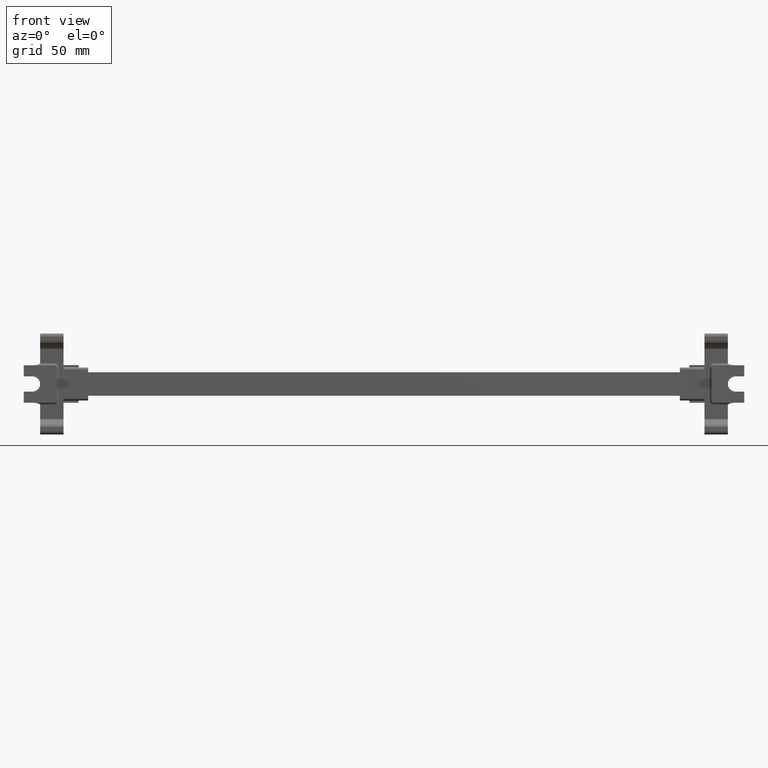
[diagram: clean part render]
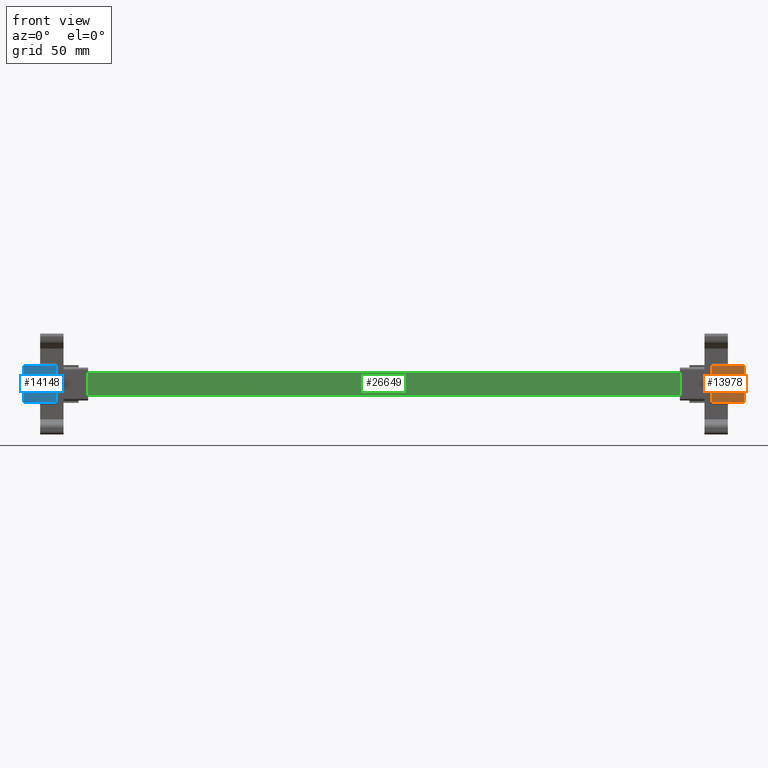
[diagram: same view with three faces highlighted in distinct colors, each labeled with its STEP entity id]
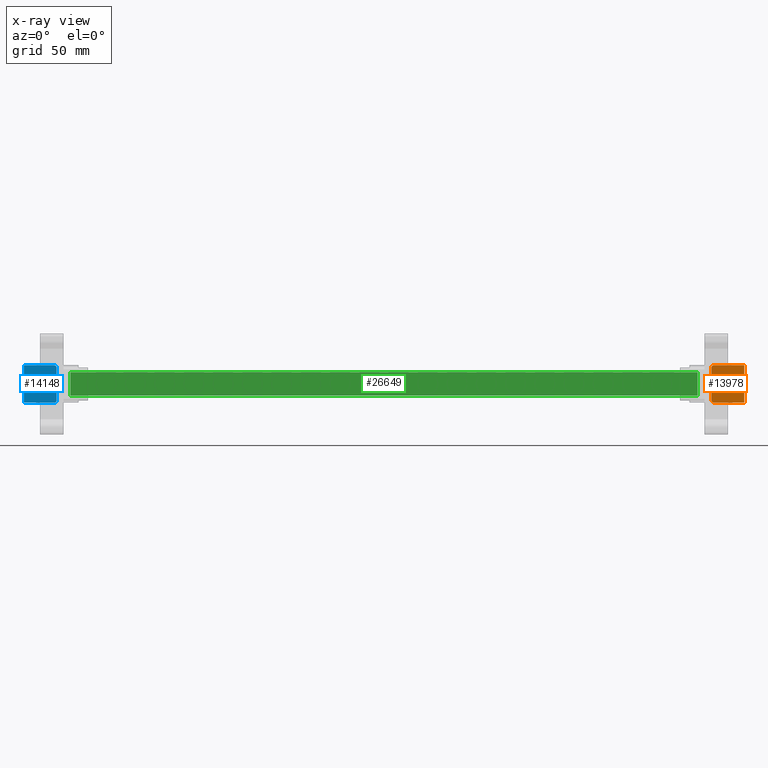
[diagram: x-ray of the same camera — body ghosted, the three highlighted faces saturated]
A machine part, front view with three faces highlighted in distinct colors.
The next image is the same camera in x-ray (body ghosted, the three faces saturated) — at least one of them is partly hidden behind the body in this view.
Their STEP definitions:

[orange] entity #13978 — the highlighted planar face has unit normal (-0, -1, -0).
#1076 = DIRECTION ( 'NONE',  ( 1.000000000000000000, -8.540177112501197500E-015, 6.405132834375897700E-015 ) ) ;
#1079 = DIRECTION ( 'NONE',  ( -7.897574987183420400E-015, -1.000000000000000000, -2.740021935547334900E-029 ) ) ;
#1091 = CARTESIAN_POINT ( 'NONE',  ( 235.2973023041757900, 37.74082521647592600, 38.07764998369230400 ) ) ;
#2819 = AXIS2_PLACEMENT_3D ( 'NONE', #1091, #1079, #1076 ) ;
#2843 = CIRCLE ( 'NONE', #2819, 3.250000000000002700 ) ;
#6812 = EDGE_CURVE ( 'NONE', #9332, #9300, #2843, .T. ) ;
#9300 = VERTEX_POINT ( 'NONE', #18693 ) ;
#9332 = VERTEX_POINT ( 'NONE', #18640 ) ;
#12582 = LINE ( 'NONE', #12598, #21696 ) ;
#12587 = LINE ( 'NONE', #12664, #21679 ) ;
#12598 = CARTESIAN_POINT ( 'NONE',  ( 205.5548808714676200, 37.74082521647613900, 30.07865108636539700 ) ) ;
#12624 = DIRECTION ( 'NONE',  ( 1.000000000000000000, -7.897574987183420400E-015, 3.511194208363125300E-015 ) ) ;
#12664 = CARTESIAN_POINT ( 'NONE',  ( 205.5548808714676200, 37.74082521647613900, 46.07664888101894700 ) ) ;
#12691 = DIRECTION ( 'NONE',  ( 1.000000000000000000, -6.938893903907222100E-015, 0.0000000000000000000 ) ) ;
#12723 = CARTESIAN_POINT ( 'NONE',  ( 226.0473023041757300, 37.74082521647602600, 45.07664888101899000 ) ) ;
#12727 = DIRECTION ( 'NONE',  ( -7.897574987183420400E-015, -1.000000000000000000, -2.740021935547334900E-029 ) ) ;
#12735 = DIRECTION ( 'NONE',  ( 7.897574987183420400E-015, 1.000000000000000000, -2.709602578543629900E-029 ) ) ;
#12755 = DIRECTION ( 'NONE',  ( 1.000000000000000000, -7.897574987183420400E-015, 3.511194208363125300E-015 ) ) ;
#12761 = CARTESIAN_POINT ( 'NONE',  ( 226.0473023041758200, 37.74082521647602600, 31.07865108636548600 ) ) ;
#12776 = DIRECTION ( 'NONE',  ( 1.000000000000000000, -6.938893903907222100E-015, 6.938893903907222100E-015 ) ) ;
#12786 = CARTESIAN_POINT ( 'NONE',  ( 239.0473023041757000, 37.74082521647591900, 46.07664888101908200 ) ) ;
#12789 = LINE ( 'NONE', #12848, #21589 ) ;
#12796 = DIRECTION ( 'NONE',  ( 3.552941225665730200E-015, -6.594003992771352600E-031, -1.000000000000000000 ) ) ;
#12804 = CARTESIAN_POINT ( 'NONE',  ( 235.2973023041757900, 37.74082521647592600, 38.07764998369230400 ) ) ;
#12805 = DIRECTION ( 'NONE',  ( -7.897574987183420400E-015, -1.000000000000000000, -2.740021935547334900E-029 ) ) ;
#12838 = DIRECTION ( 'NONE',  ( 1.000000000000000000, -8.540177112501197500E-015, 6.405132834375897700E-015 ) ) ;
#12848 = CARTESIAN_POINT ( 'NONE',  ( 205.5548808714676500, 37.74082521647613900, 41.32764998369209800 ) ) ;
#12852 = DIRECTION ( 'NONE',  ( -1.000000000000000000, 7.897574987183420400E-015, -7.022388416726250500E-015 ) ) ;
#12871 = LINE ( 'NONE', #12786, #21655 ) ;
#12971 = LINE ( 'NONE', #12977, #21683 ) ;
#12977 = CARTESIAN_POINT ( 'NONE',  ( 205.5548808714676500, 37.74082521647613900, 34.82764998369224700 ) ) ;
#12981 = DIRECTION ( 'NONE',  ( -1.000000000000000000, 7.897574987183420400E-015, 0.0000000000000000000 ) ) ;
#12983 = CARTESIAN_POINT ( 'NONE',  ( 225.0473023041756400, 37.74082521647588400, 71.07764998369228200 ) ) ;
#12985 = LINE ( 'NONE', #12983, #21785 ) ;
#13040 = LINE ( 'NONE', #13053, #21623 ) ;
#13047 = DIRECTION ( 'NONE',  ( 3.511194208363125300E-015, -2.757782277009340000E-029, -1.000000000000000000 ) ) ;
#13053 = CARTESIAN_POINT ( 'NONE',  ( 239.0473023041758200, 37.74082521647591900, 30.07865108636553600 ) ) ;
#13058 = DIRECTION ( 'NONE',  ( -3.469447191060520300E-015, 5.449624514090966400E-029, 1.000000000000000000 ) ) ;
#13978 = ADVANCED_FACE ( 'NONE', ( #23113 ), #23101, .T. ) ;
#14381 = EDGE_CURVE ( 'NONE', #20359, #20355, #12587, .T. ) ;
#14384 = EDGE_CURVE ( 'NONE', #20346, #20396, #12582, .T. ) ;
#14389 = EDGE_CURVE ( 'NONE', #20359, #20413, #21709, .T. ) ;
#14391 = EDGE_CURVE ( 'NONE', #20346, #20363, #21602, .T. ) ;
#14406 = EDGE_CURVE ( 'NONE', #9300, #20402, #21668, .T. ) ;
#14408 = EDGE_CURVE ( 'NONE', #20355, #20388, #12871, .T. ) ;
#14411 = EDGE_CURVE ( 'NONE', #20388, #9332, #12789, .T. ) ;
#14424 = EDGE_CURVE ( 'NONE', #20395, #20402, #12971, .T. ) ;
#14431 = EDGE_CURVE ( 'NONE', #20396, #20395, #13040, .T. ) ;
#14437 = EDGE_CURVE ( 'NONE', #20413, #20363, #12985, .T. ) ;
#18640 = CARTESIAN_POINT ( 'NONE',  ( 235.2973023041757300, 37.74082521647592600, 41.32764998369230400 ) ) ;
#18693 = CARTESIAN_POINT ( 'NONE',  ( 232.0473023041757900, 37.74082521647595500, 38.07764998369228200 ) ) ;
#19031 = ORIENTED_EDGE ( 'NONE', *, *, #14406, .F. ) ;
#19051 = ORIENTED_EDGE ( 'NONE', *, *, #14384, .T. ) ;
#19053 = ORIENTED_EDGE ( 'NONE', *, *, #14431, .T. ) ;
#19055 = ORIENTED_EDGE ( 'NONE', *, *, #14391, .F. ) ;
#19062 = ORIENTED_EDGE ( 'NONE', *, *, #14437, .T. ) ;
#19064 = ORIENTED_EDGE ( 'NONE', *, *, #14408, .F. ) ;
#19087 = ORIENTED_EDGE ( 'NONE', *, *, #14411, .F. ) ;
#20346 = VERTEX_POINT ( 'NONE', #28900 ) ;
#20355 = VERTEX_POINT ( 'NONE', #28903 ) ;
#20359 = VERTEX_POINT ( 'NONE', #28907 ) ;
#20363 = VERTEX_POINT ( 'NONE', #28898 ) ;
#20388 = VERTEX_POINT ( 'NONE', #28960 ) ;
#20395 = VERTEX_POINT ( 'NONE', #28996 ) ;
#20396 = VERTEX_POINT ( 'NONE', #28966 ) ;
#20402 = VERTEX_POINT ( 'NONE', #29006 ) ;
#20413 = VERTEX_POINT ( 'NONE', #28990 ) ;
#20877 = EDGE_LOOP ( 'NONE', ( #27295, #27285, #19062, #19055, #19051, #19053, #27288, #19031, #27289, #19087, #19064 ) ) ;
#21589 = VECTOR ( 'NONE', #12852, 1000.000000000000000 ) ;
#21602 = CIRCLE ( 'NONE', #21604, 1.000000000000000900 ) ;
#21604 = AXIS2_PLACEMENT_3D ( 'NONE', #12761, #12735, #12691 ) ;
#21609 = AXIS2_PLACEMENT_3D ( 'NONE', #12804, #12805, #12838 ) ;
#21623 = VECTOR ( 'NONE', #13058, 1000.000000000000000 ) ;
#21655 = VECTOR ( 'NONE', #12796, 1000.000000000000000 ) ;
#21668 = CIRCLE ( 'NONE', #21609, 3.250000000000002700 ) ;
#21679 = VECTOR ( 'NONE', #12624, 1000.000000000000000 ) ;
#21683 = VECTOR ( 'NONE', #12981, 1000.000000000000000 ) ;
#21696 = VECTOR ( 'NONE', #12755, 1000.000000000000000 ) ;
#21705 = AXIS2_PLACEMENT_3D ( 'NONE', #12723, #12727, #12776 ) ;
#21709 = CIRCLE ( 'NONE', #21705, 1.000000000000000900 ) ;
#21785 = VECTOR ( 'NONE', #13047, 1000.000000000000000 ) ;
#23093 = DIRECTION ( 'NONE',  ( 1.000000000000000000, -7.897574987183420400E-015, 7.022388416726250500E-015 ) ) ;
#23101 = PLANE ( 'NONE',  #26923 ) ;
#23113 = FACE_OUTER_BOUND ( 'NONE', #20877, .T. ) ;
#23132 = CARTESIAN_POINT ( 'NONE',  ( 205.5548808714676200, 37.74082521647613900, 46.07664888101894700 ) ) ;
#23136 = DIRECTION ( 'NONE',  ( -7.897574987183420400E-015, -1.000000000000000000, -2.740021935547334900E-029 ) ) ;
#26923 = AXIS2_PLACEMENT_3D ( 'NONE', #23132, #23136, #23093 ) ;
#27285 = ORIENTED_EDGE ( 'NONE', *, *, #14389, .T. ) ;
#27288 = ORIENTED_EDGE ( 'NONE', *, *, #14424, .T. ) ;
#27289 = ORIENTED_EDGE ( 'NONE', *, *, #6812, .F. ) ;
#27295 = ORIENTED_EDGE ( 'NONE', *, *, #14381, .F. ) ;
#28898 = CARTESIAN_POINT ( 'NONE',  ( 225.0473023041758200, 37.74082521647588400, 31.07865108636547900 ) ) ;
#28900 = CARTESIAN_POINT ( 'NONE',  ( 226.0473023041758200, 37.74082521647602600, 30.07865108636549000 ) ) ;
#28903 = CARTESIAN_POINT ( 'NONE',  ( 239.0473023041757000, 37.74082521647591900, 46.07664888101908200 ) ) ;
#28907 = CARTESIAN_POINT ( 'NONE',  ( 226.0473023041757300, 37.74082521647602600, 46.07664888101899000 ) ) ;
#28960 = CARTESIAN_POINT ( 'NONE',  ( 239.0473023041757600, 37.74082521647591900, 41.32764998369233200 ) ) ;
#28966 = CARTESIAN_POINT ( 'NONE',  ( 239.0473023041758200, 37.74082521647591900, 30.07865108636553600 ) ) ;
#28990 = CARTESIAN_POINT ( 'NONE',  ( 225.0473023041757300, 37.74082521647588400, 45.07664888101898300 ) ) ;
#28996 = CARTESIAN_POINT ( 'NONE',  ( 239.0473023041757900, 37.74082521647591900, 34.82764998369223300 ) ) ;
#29006 = CARTESIAN_POINT ( 'NONE',  ( 235.2973023041757900, 37.74082521647592600, 34.82764998369225400 ) ) ;

[blue] entity #14148 — the highlighted planar face has unit normal (-0, -1, -0).
#2487 = CARTESIAN_POINT ( 'NONE',  ( -65.20269769582419900, 37.74082521647829900, 38.07764998369125200 ) ) ;
#2489 = DIRECTION ( 'NONE',  ( 7.897574987183420400E-015, 1.000000000000000000, 2.740021935547334900E-029 ) ) ;
#2492 = DIRECTION ( 'NONE',  ( -1.000000000000000000, 8.540177112501197500E-015, 0.0000000000000000000 ) ) ;
#2789 = AXIS2_PLACEMENT_3D ( 'NONE', #2487, #2489, #2492 ) ;
#2791 = CIRCLE ( 'NONE', #2789, 3.250000000000002700 ) ;
#6742 = EDGE_CURVE ( 'NONE', #9318, #9298, #2791, .T. ) ;
#8808 = VERTEX_POINT ( 'NONE', #18540 ) ;
#9157 = CARTESIAN_POINT ( 'NONE',  ( -68.95269769582419900, 37.74082521647835600, 34.82764998369115300 ) ) ;
#9205 = CARTESIAN_POINT ( 'NONE',  ( -68.95269769582419900, 37.74082521647835600, 30.07865108636445200 ) ) ;
#9207 = CARTESIAN_POINT ( 'NONE',  ( -55.95269769582419900, 37.74082521647825000, 46.07664888101800200 ) ) ;
#9223 = CARTESIAN_POINT ( 'NONE',  ( -55.95269769582419900, 37.74082521647825000, 30.07865108636450200 ) ) ;
#9298 = VERTEX_POINT ( 'NONE', #18686 ) ;
#9318 = VERTEX_POINT ( 'NONE', #18670 ) ;
#14148 = ADVANCED_FACE ( 'NONE', ( #15218 ), #15268, .T. ) ;
#14209 = EDGE_CURVE ( 'NONE', #16087, #16082, #15467, .T. ) ;
#14232 = EDGE_CURVE ( 'NONE', #16140, #16087, #15512, .T. ) ;
#14258 = EDGE_CURVE ( 'NONE', #20334, #20386, #15618, .T. ) ;
#14260 = EDGE_CURVE ( 'NONE', #8808, #20288, #15629, .T. ) ;
#14280 = EDGE_CURVE ( 'NONE', #16140, #20386, #21410, .T. ) ;
#14294 = EDGE_CURVE ( 'NONE', #16093, #20334, #21306, .T. ) ;
#14298 = EDGE_CURVE ( 'NONE', #20304, #9318, #21354, .T. ) ;
#14302 = EDGE_CURVE ( 'NONE', #20288, #20304, #15754, .T. ) ;
#14307 = EDGE_CURVE ( 'NONE', #16082, #9298, #15737, .T. ) ;
#14309 = EDGE_CURVE ( 'NONE', #16093, #8808, #15815, .T. ) ;
#15218 = FACE_OUTER_BOUND ( 'NONE', #18975, .T. ) ;
#15268 = PLANE ( 'NONE',  #27091 ) ;
#15275 = CARTESIAN_POINT ( 'NONE',  ( -35.46027626311610700, 37.74082521647805100, 46.07664888101810200 ) ) ;
#15278 = DIRECTION ( 'NONE',  ( -1.000000000000000000, 7.897574987183420400E-015, 0.0000000000000000000 ) ) ;
#15279 = DIRECTION ( 'NONE',  ( -7.897574987183420400E-015, -1.000000000000000000, -2.740021935547334900E-029 ) ) ;
#15456 = CARTESIAN_POINT ( 'NONE',  ( -68.95269769582419900, 37.74082521647835600, 30.07865108636445200 ) ) ;
#15467 = LINE ( 'NONE', #15456, #27170 ) ;
#15488 = DIRECTION ( 'NONE',  ( -3.552941225665730200E-015, 5.515564554018680000E-029, 1.000000000000000000 ) ) ;
#15496 = CARTESIAN_POINT ( 'NONE',  ( -35.46027626311600000, 37.74082521647805100, 30.07865108636455200 ) ) ;
#15502 = DIRECTION ( 'NONE',  ( -1.000000000000000000, 7.897574987183420400E-015, -3.511194208363125300E-015 ) ) ;
#15512 = LINE ( 'NONE', #15496, #27188 ) ;
#15591 = CARTESIAN_POINT ( 'NONE',  ( -68.95269769582419900, 37.74082521647835600, 46.07664888101800200 ) ) ;
#15593 = DIRECTION ( 'NONE',  ( 3.469447191060520300E-015, 0.0000000000000000000, -1.000000000000000000 ) ) ;
#15618 = LINE ( 'NONE', #15622, #26904 ) ;
#15622 = CARTESIAN_POINT ( 'NONE',  ( -54.95269769582430500, 37.74082521647810000, 71.07764998369130200 ) ) ;
#15626 = DIRECTION ( 'NONE',  ( 3.511194208363125300E-015, -2.757782277009340000E-029, -1.000000000000000000 ) ) ;
#15629 = LINE ( 'NONE', #15591, #27265 ) ;
#15688 = CARTESIAN_POINT ( 'NONE',  ( -55.95269769582419900, 37.74082521647825000, 31.07865108636449800 ) ) ;
#15704 = DIRECTION ( 'NONE',  ( -1.000000000000000000, 6.938893903907222100E-015, -6.938893903907222100E-015 ) ) ;
#15720 = DIRECTION ( 'NONE',  ( -7.897574987183420400E-015, -1.000000000000000000, 2.709602578543629900E-029 ) ) ;
#15729 = CARTESIAN_POINT ( 'NONE',  ( -35.46027626311610700, 37.74082521647805100, 41.32764998369124500 ) ) ;
#15730 = DIRECTION ( 'NONE',  ( -1.000000000000000000, 6.938893903907222100E-015, 0.0000000000000000000 ) ) ;
#15737 = LINE ( 'NONE', #15796, #21311 ) ;
#15741 = CARTESIAN_POINT ( 'NONE',  ( -65.20269769582419900, 37.74082521647829900, 38.07764998369125200 ) ) ;
#15744 = DIRECTION ( 'NONE',  ( -1.000000000000000000, 8.540177112501197500E-015, 0.0000000000000000000 ) ) ;
#15750 = DIRECTION ( 'NONE',  ( 7.897574987183420400E-015, 1.000000000000000000, 2.740021935547334900E-029 ) ) ;
#15752 = DIRECTION ( 'NONE',  ( 7.897574987183420400E-015, 1.000000000000000000, 2.740021935547334900E-029 ) ) ;
#15754 = LINE ( 'NONE', #15729, #21356 ) ;
#15762 = DIRECTION ( 'NONE',  ( 1.000000000000000000, -7.897574987183420400E-015, 6.325164568388729900E-045 ) ) ;
#15763 = CARTESIAN_POINT ( 'NONE',  ( -55.95269769582419900, 37.74082521647825000, 45.07664888101799500 ) ) ;
#15788 = DIRECTION ( 'NONE',  ( -1.000000000000000000, 7.897574987183420400E-015, -3.511194208363125300E-015 ) ) ;
#15796 = CARTESIAN_POINT ( 'NONE',  ( -35.46027626311605000, 37.74082521647805100, 34.82764998369140100 ) ) ;
#15813 = DIRECTION ( 'NONE',  ( 1.000000000000000000, -7.897574987183420400E-015, 7.022388416726250500E-015 ) ) ;
#15815 = LINE ( 'NONE', #15818, #21369 ) ;
#15818 = CARTESIAN_POINT ( 'NONE',  ( -35.46027626311610700, 37.74082521647805100, 46.07664888101810200 ) ) ;
#16082 = VERTEX_POINT ( 'NONE', #9157 ) ;
#16087 = VERTEX_POINT ( 'NONE', #9205 ) ;
#16093 = VERTEX_POINT ( 'NONE', #9207 ) ;
#16140 = VERTEX_POINT ( 'NONE', #9223 ) ;
#18540 = CARTESIAN_POINT ( 'NONE',  ( -68.95269769582419900, 37.74082521647835600, 46.07664888101800200 ) ) ;
#18670 = CARTESIAN_POINT ( 'NONE',  ( -61.95269769582419200, 37.74082521647827100, 38.07764998369125200 ) ) ;
#18686 = CARTESIAN_POINT ( 'NONE',  ( -65.20269769582419900, 37.74082521647829900, 34.82764998369120200 ) ) ;
#18970 = ORIENTED_EDGE ( 'NONE', *, *, #6742, .T. ) ;
#18975 = EDGE_LOOP ( 'NONE', ( #18981, #18991, #19011, #19004, #18970, #18983, #18993, #20819, #19006, #18986, #19019 ) ) ;
#18981 = ORIENTED_EDGE ( 'NONE', *, *, #14309, .T. ) ;
#18983 = ORIENTED_EDGE ( 'NONE', *, *, #14307, .F. ) ;
#18986 = ORIENTED_EDGE ( 'NONE', *, *, #14258, .F. ) ;
#18991 = ORIENTED_EDGE ( 'NONE', *, *, #14260, .T. ) ;
#18993 = ORIENTED_EDGE ( 'NONE', *, *, #14209, .F. ) ;
#19004 = ORIENTED_EDGE ( 'NONE', *, *, #14298, .T. ) ;
#19006 = ORIENTED_EDGE ( 'NONE', *, *, #14280, .T. ) ;
#19011 = ORIENTED_EDGE ( 'NONE', *, *, #14302, .T. ) ;
#19019 = ORIENTED_EDGE ( 'NONE', *, *, #14294, .F. ) ;
#20288 = VERTEX_POINT ( 'NONE', #28879 ) ;
#20304 = VERTEX_POINT ( 'NONE', #28839 ) ;
#20334 = VERTEX_POINT ( 'NONE', #28913 ) ;
#20386 = VERTEX_POINT ( 'NONE', #28964 ) ;
#20819 = ORIENTED_EDGE ( 'NONE', *, *, #14232, .F. ) ;
#21304 = AXIS2_PLACEMENT_3D ( 'NONE', #15741, #15752, #15744 ) ;
#21306 = CIRCLE ( 'NONE', #21386, 1.000000000000000900 ) ;
#21311 = VECTOR ( 'NONE', #15813, 1000.000000000000000 ) ;
#21354 = CIRCLE ( 'NONE', #21304, 3.250000000000002700 ) ;
#21356 = VECTOR ( 'NONE', #15762, 1000.000000000000000 ) ;
#21369 = VECTOR ( 'NONE', #15788, 1000.000000000000000 ) ;
#21384 = AXIS2_PLACEMENT_3D ( 'NONE', #15688, #15720, #15704 ) ;
#21386 = AXIS2_PLACEMENT_3D ( 'NONE', #15763, #15750, #15730 ) ;
#21410 = CIRCLE ( 'NONE', #21384, 1.000000000000000900 ) ;
#26904 = VECTOR ( 'NONE', #15626, 1000.000000000000000 ) ;
#27091 = AXIS2_PLACEMENT_3D ( 'NONE', #15275, #15279, #15278 ) ;
#27170 = VECTOR ( 'NONE', #15488, 1000.000000000000000 ) ;
#27188 = VECTOR ( 'NONE', #15502, 1000.000000000000000 ) ;
#27265 = VECTOR ( 'NONE', #15593, 1000.000000000000000 ) ;
#28839 = CARTESIAN_POINT ( 'NONE',  ( -65.20269769582419900, 37.74082521647829900, 41.32764998369124500 ) ) ;
#28879 = CARTESIAN_POINT ( 'NONE',  ( -68.95269769582419900, 37.74082521647835600, 41.32764998369124500 ) ) ;
#28913 = CARTESIAN_POINT ( 'NONE',  ( -54.95269769582420600, 37.74082521647810000, 45.07664888101799500 ) ) ;
#28964 = CARTESIAN_POINT ( 'NONE',  ( -54.95269769582420600, 37.74082521647810000, 31.07865108636449800 ) ) ;

[green] entity #26649 — the highlighted planar face has unit normal (0, 1, 0).
#1196 = EDGE_CURVE ( 'NONE', #9308, #8395, #24999, .T. ) ;
#1219 = EDGE_CURVE ( 'NONE', #16328, #9308, #25037, .T. ) ;
#1224 = EDGE_CURVE ( 'NONE', #16328, #16318, #25059, .T. ) ;
#1243 = EDGE_CURVE ( 'NONE', #16318, #8395, #25038, .T. ) ;
#8395 = VERTEX_POINT ( 'NONE', #18468 ) ;
#9308 = VERTEX_POINT ( 'NONE', #18650 ) ;
#9593 = CARTESIAN_POINT ( 'NONE',  ( 219.1473023041759200, 47.41882648292872200, 33.07764998369332000 ) ) ;
#9608 = CARTESIAN_POINT ( 'NONE',  ( -49.05269769582425000, 47.41882648292872200, 33.07764998369332000 ) ) ;
#16318 = VERTEX_POINT ( 'NONE', #9593 ) ;
#16328 = VERTEX_POINT ( 'NONE', #9608 ) ;
#18468 = CARTESIAN_POINT ( 'NONE',  ( 219.1473023041759200, 47.41882648292872200, 43.07764998369332000 ) ) ;
#18650 = CARTESIAN_POINT ( 'NONE',  ( -49.05269769582425000, 47.41882648292872200, 43.07764998369332000 ) ) ;
#19709 = ORIENTED_EDGE ( 'NONE', *, *, #1243, .T. ) ;
#19803 = ORIENTED_EDGE ( 'NONE', *, *, #1219, .F. ) ;
#19810 = ORIENTED_EDGE ( 'NONE', *, *, #1224, .T. ) ;
#19823 = ORIENTED_EDGE ( 'NONE', *, *, #1196, .F. ) ;
#19853 = EDGE_LOOP ( 'NONE', ( #19709, #19823, #19803, #19810 ) ) ;
#21152 = AXIS2_PLACEMENT_3D ( 'NONE', #29070, #29080, #29083 ) ;
#21208 = VECTOR ( 'NONE', #25107, 1000.000000000000000 ) ;
#21211 = VECTOR ( 'NONE', #25029, 1000.000000000000000 ) ;
#24990 = DIRECTION ( 'NONE',  ( 1.000000000000000000, 0.0000000000000000000, 0.0000000000000000000 ) ) ;
#24999 = LINE ( 'NONE', #25002, #29264 ) ;
#25002 = CARTESIAN_POINT ( 'NONE',  ( -56.95269769582426300, 47.41882648292872200, 43.07764998369332000 ) ) ;
#25023 = CARTESIAN_POINT ( 'NONE',  ( -49.05269769582420000, 47.41882648293390200, 45.21699448720529800 ) ) ;
#25029 = DIRECTION ( 'NONE',  ( 1.000000000000000000, 0.0000000000000000000, 0.0000000000000000000 ) ) ;
#25034 = DIRECTION ( 'NONE',  ( -2.318029420325569700E-017, 1.372206676878575900E-013, 1.000000000000000000 ) ) ;
#25037 = LINE ( 'NONE', #25023, #29343 ) ;
#25038 = LINE ( 'NONE', #25079, #21208 ) ;
#25049 = CARTESIAN_POINT ( 'NONE',  ( -56.95269769582426300, 47.41882648292872200, 33.07764998369332000 ) ) ;
#25059 = LINE ( 'NONE', #25049, #21211 ) ;
#25079 = CARTESIAN_POINT ( 'NONE',  ( 219.1473023041758700, 47.41882648293178400, 45.21699448720624300 ) ) ;
#25107 = DIRECTION ( 'NONE',  ( -6.999208122520827000E-015, 1.372206676878576400E-013, 1.000000000000000000 ) ) ;
#26649 = ADVANCED_FACE ( 'NONE', ( #29078 ), #29069, .F. ) ;
#29069 = PLANE ( 'NONE',  #21152 ) ;
#29070 = CARTESIAN_POINT ( 'NONE',  ( -56.95269769582426300, 47.41882648292872200, 43.07764998369332000 ) ) ;
#29078 = FACE_OUTER_BOUND ( 'NONE', #19853, .T. ) ;
#29080 = DIRECTION ( 'NONE',  ( 0.0000000000000000000, 1.000000000000000000, 0.0000000000000000000 ) ) ;
#29083 = DIRECTION ( 'NONE',  ( 0.0000000000000000000, -0.0000000000000000000, 1.000000000000000000 ) ) ;
#29264 = VECTOR ( 'NONE', #24990, 1000.000000000000000 ) ;
#29343 = VECTOR ( 'NONE', #25034, 1000.000000000000000 ) ;